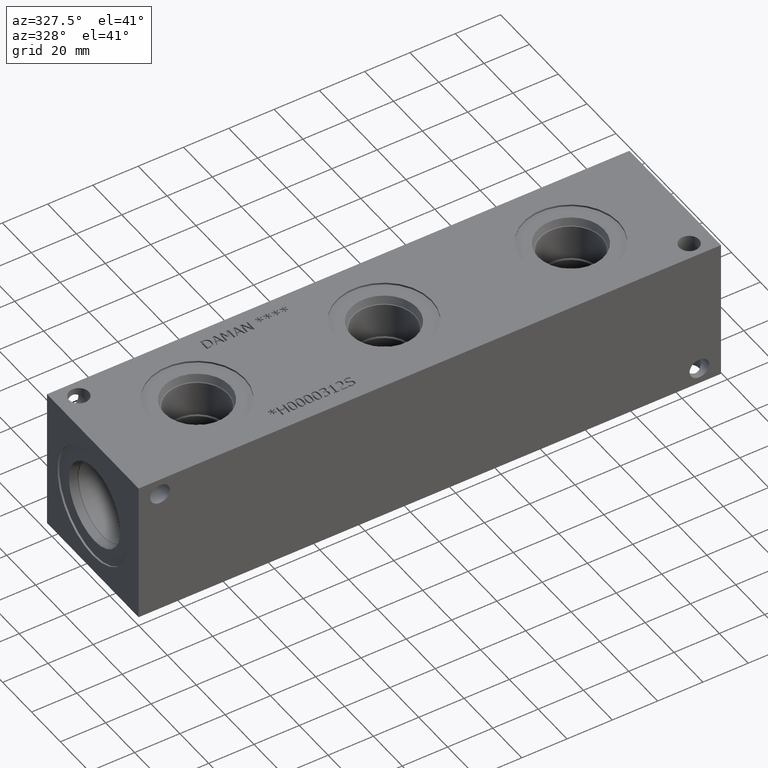
[diagram: clean part render]
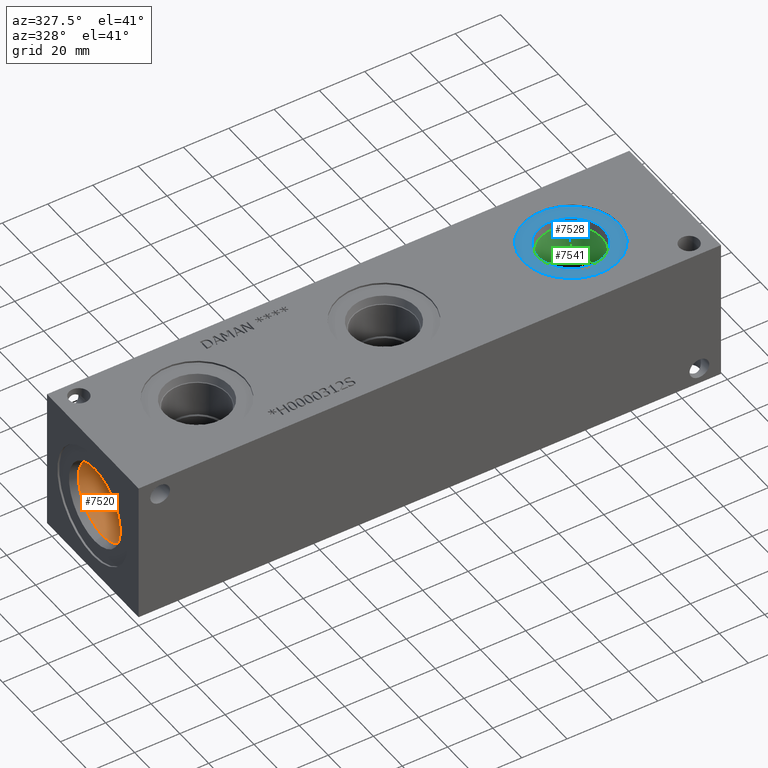
[diagram: same view with three faces highlighted in distinct colors, each labeled with its STEP entity id]
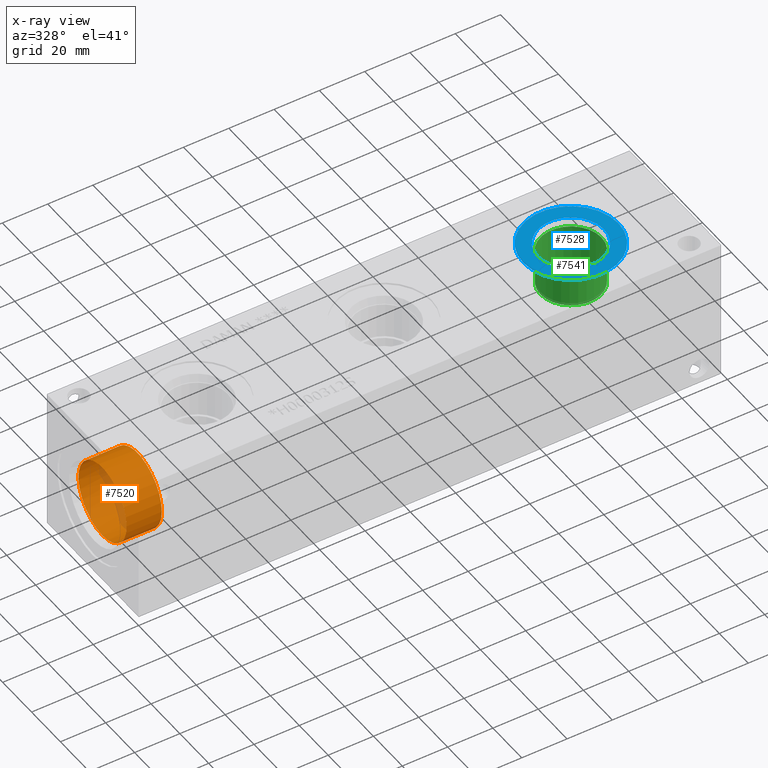
[diagram: x-ray of the same camera — body ghosted, the three highlighted faces saturated]
A machine part, auxiliary view with three faces highlighted in distinct colors.
The next image is the same camera in x-ray (body ghosted, the three faces saturated) — at least one of them is partly hidden behind the body in this view.
Their STEP definitions:

[orange] entity #7520 — the highlighted cylindrical surface (bore or boss wall) has radius 16.67 mm, axis along (-1, 0, 0).
#60=CYLINDRICAL_SURFACE('',#7873,16.67);
#127=CIRCLE('',#7870,16.67);
#128=CIRCLE('',#7871,16.67);
#130=CIRCLE('',#7874,16.67);
#131=CIRCLE('',#7875,16.67);
#899=FACE_OUTER_BOUND('',#1318,.T.);
#1318=EDGE_LOOP('',(#6420,#6421,#6422,#6423,#6424,#6425));
#2053=LINE('',#12882,#2766);
#2766=VECTOR('',#9245,16.67);
#3440=VERTEX_POINT('',#12872);
#3441=VERTEX_POINT('',#12873);
#3443=VERTEX_POINT('',#12879);
#3444=VERTEX_POINT('',#12880);
#4455=EDGE_CURVE('',#3440,#3441,#127,.T.);
#4456=EDGE_CURVE('',#3441,#3440,#128,.T.);
#4458=EDGE_CURVE('',#3443,#3444,#130,.T.);
#4459=EDGE_CURVE('',#3443,#3441,#2053,.T.);
#4460=EDGE_CURVE('',#3444,#3443,#131,.T.);
#6420=ORIENTED_EDGE('',*,*,#4458,.F.);
#6421=ORIENTED_EDGE('',*,*,#4459,.T.);
#6422=ORIENTED_EDGE('',*,*,#4455,.F.);
#6423=ORIENTED_EDGE('',*,*,#4456,.F.);
#6424=ORIENTED_EDGE('',*,*,#4459,.F.);
#6425=ORIENTED_EDGE('',*,*,#4460,.F.);
#7520=ADVANCED_FACE('',(#899),#60,.F.);
#7870=AXIS2_PLACEMENT_3D('',#12874,#9235,#9236);
#7871=AXIS2_PLACEMENT_3D('',#12875,#9237,#9238);
#7873=AXIS2_PLACEMENT_3D('',#12878,#9241,#9242);
#7874=AXIS2_PLACEMENT_3D('',#12881,#9243,#9244);
#7875=AXIS2_PLACEMENT_3D('',#12883,#9246,#9247);
#9235=DIRECTION('center_axis',(-1.,0.,0.));
#9236=DIRECTION('ref_axis',(0.,1.,0.));
#9237=DIRECTION('center_axis',(-1.,0.,0.));
#9238=DIRECTION('ref_axis',(0.,1.,0.));
#9241=DIRECTION('center_axis',(-1.,0.,0.));
#9242=DIRECTION('ref_axis',(0.,1.,0.));
#9243=DIRECTION('center_axis',(1.,0.,0.));
#9244=DIRECTION('ref_axis',(0.,1.,0.));
#9245=DIRECTION('',(1.,0.,0.));
#9246=DIRECTION('center_axis',(1.,0.,0.));
#9247=DIRECTION('ref_axis',(0.,1.,0.));
#12872=CARTESIAN_POINT('',(19.8374,48.42,31.75));
#12873=CARTESIAN_POINT('',(19.8374,15.08,31.75));
#12874=CARTESIAN_POINT('Origin',(19.8374,31.75,31.75));
#12875=CARTESIAN_POINT('Origin',(19.8374,31.75,31.75));
#12878=CARTESIAN_POINT('Origin',(9.9187,31.75,31.75));
#12879=CARTESIAN_POINT('',(4.2723,15.08,31.75));
#12880=CARTESIAN_POINT('',(4.2723,31.75,15.08));
#12881=CARTESIAN_POINT('Origin',(4.2723,31.75,31.75));
#12882=CARTESIAN_POINT('',(9.9187,15.08,31.75));
#12883=CARTESIAN_POINT('Origin',(4.2723,31.75,31.75));

[blue] entity #7528 — the highlighted planar face has unit normal (0, 0, -1).
#142=CIRCLE('',#7893,21.0185);
#143=CIRCLE('',#7894,21.0185);
#144=CIRCLE('',#7896,14.5923);
#145=CIRCLE('',#7897,14.5923);
#226=FACE_BOUND('',#1328,.T.);
#907=FACE_OUTER_BOUND('',#1327,.T.);
#1327=EDGE_LOOP('',(#6465,#6466));
#1328=EDGE_LOOP('',(#6467,#6468));
#3455=VERTEX_POINT('',#12916);
#3456=VERTEX_POINT('',#12918);
#3457=VERTEX_POINT('',#12922);
#3458=VERTEX_POINT('',#12923);
#4477=EDGE_CURVE('',#3455,#3456,#142,.T.);
#4478=EDGE_CURVE('',#3456,#3455,#143,.T.);
#4479=EDGE_CURVE('',#3457,#3458,#144,.T.);
#4480=EDGE_CURVE('',#3458,#3457,#145,.T.);
#6465=ORIENTED_EDGE('',*,*,#4478,.F.);
#6466=ORIENTED_EDGE('',*,*,#4477,.F.);
#6467=ORIENTED_EDGE('',*,*,#4479,.T.);
#6468=ORIENTED_EDGE('',*,*,#4480,.T.);
#6866=PLANE('',#7895);
#7528=ADVANCED_FACE('',(#907,#226),#6866,.F.);
#7893=AXIS2_PLACEMENT_3D('',#12919,#9288,#9289);
#7894=AXIS2_PLACEMENT_3D('',#12920,#9290,#9291);
#7895=AXIS2_PLACEMENT_3D('',#12921,#9292,#9293);
#7896=AXIS2_PLACEMENT_3D('',#12924,#9294,#9295);
#7897=AXIS2_PLACEMENT_3D('',#12925,#9296,#9297);
#9288=DIRECTION('center_axis',(0.,0.,-1.));
#9289=DIRECTION('ref_axis',(1.,0.,0.));
#9290=DIRECTION('center_axis',(0.,0.,-1.));
#9291=DIRECTION('ref_axis',(1.,0.,0.));
#9292=DIRECTION('center_axis',(0.,0.,-1.));
#9293=DIRECTION('ref_axis',(-1.,0.,0.));
#9294=DIRECTION('center_axis',(0.,0.,-1.));
#9295=DIRECTION('ref_axis',(1.,0.,0.));
#9296=DIRECTION('center_axis',(0.,0.,-1.));
#9297=DIRECTION('ref_axis',(1.,0.,0.));
#12916=CARTESIAN_POINT('',(190.1063,31.75,62.7126));
#12918=CARTESIAN_POINT('',(232.1433,31.75,62.7126));
#12919=CARTESIAN_POINT('Origin',(211.1248,31.75,62.7126));
#12920=CARTESIAN_POINT('Origin',(211.1248,31.75,62.7126));
#12921=CARTESIAN_POINT('Origin',(225.7171,31.75,62.7126));
#12922=CARTESIAN_POINT('',(225.7171,31.75,62.7126));
#12923=CARTESIAN_POINT('',(196.5325,31.75,62.7126));
#12924=CARTESIAN_POINT('Origin',(211.1248,31.75,62.7126));
#12925=CARTESIAN_POINT('Origin',(211.1248,31.75,62.7126));

[green] entity #7541 — the highlighted cylindrical surface (bore or boss wall) has radius 13.5001 mm, axis along (0, 0, 1).
#70=CYLINDRICAL_SURFACE('',#7927,13.5001);
#150=CIRCLE('',#7905,13.5001);
#161=CIRCLE('',#7925,13.5001);
#162=CIRCLE('',#7926,13.5001);
#920=FACE_OUTER_BOUND('',#1343,.T.);
#1343=EDGE_LOOP('',(#6524,#6525,#6526,#6527,#6528));
#2068=LINE('',#12981,#2781);
#2781=VECTOR('',#9366,13.5001);
#3463=VERTEX_POINT('',#12939);
#3474=VERTEX_POINT('',#12976);
#3475=VERTEX_POINT('',#12977);
#4488=EDGE_CURVE('',#3463,#3463,#150,.T.);
#4504=EDGE_CURVE('',#3474,#3475,#161,.T.);
#4505=EDGE_CURVE('',#3475,#3474,#162,.T.);
#4506=EDGE_CURVE('',#3463,#3475,#2068,.T.);
#6524=ORIENTED_EDGE('',*,*,#4488,.T.);
#6525=ORIENTED_EDGE('',*,*,#4506,.T.);
#6526=ORIENTED_EDGE('',*,*,#4504,.F.);
#6527=ORIENTED_EDGE('',*,*,#4505,.F.);
#6528=ORIENTED_EDGE('',*,*,#4506,.F.);
#7541=ADVANCED_FACE('',(#920),#70,.F.);
#7905=AXIS2_PLACEMENT_3D('',#12941,#9315,#9316);
#7925=AXIS2_PLACEMENT_3D('',#12978,#9360,#9361);
#7926=AXIS2_PLACEMENT_3D('',#12979,#9362,#9363);
#7927=AXIS2_PLACEMENT_3D('',#12980,#9364,#9365);
#9315=DIRECTION('center_axis',(0.,0.,1.));
#9316=DIRECTION('ref_axis',(1.,0.,0.));
#9360=DIRECTION('center_axis',(0.,0.,1.));
#9361=DIRECTION('ref_axis',(1.,0.,0.));
#9362=DIRECTION('center_axis',(0.,0.,1.));
#9363=DIRECTION('ref_axis',(1.,0.,0.));
#9364=DIRECTION('center_axis',(0.,0.,1.));
#9365=DIRECTION('ref_axis',(1.,0.,0.));
#9366=DIRECTION('',(0.,0.,-1.));
#12939=CARTESIAN_POINT('',(197.6247,31.75,59.2201));
#12941=CARTESIAN_POINT('Origin',(211.1248,31.75,59.2201));
#12976=CARTESIAN_POINT('',(224.6249,31.75,43.6626));
#12977=CARTESIAN_POINT('',(197.6247,31.75,43.6626));
#12978=CARTESIAN_POINT('Origin',(211.1248,31.75,43.6626));
#12979=CARTESIAN_POINT('Origin',(211.1248,31.75,43.6626));
#12980=CARTESIAN_POINT('Origin',(211.1248,31.75,53.5813));
#12981=CARTESIAN_POINT('',(197.6247,31.75,53.5813));